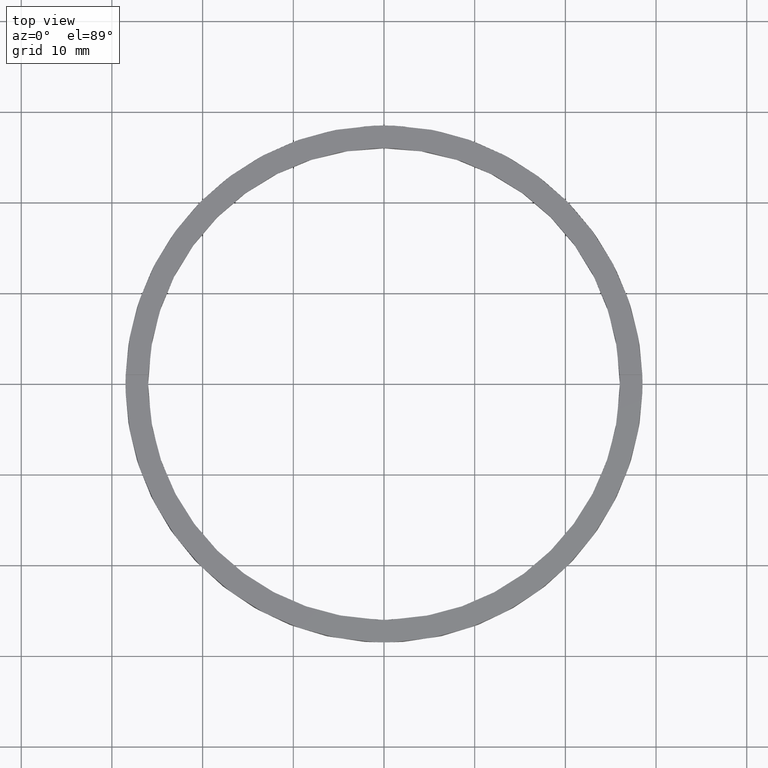
[diagram: clean part render]
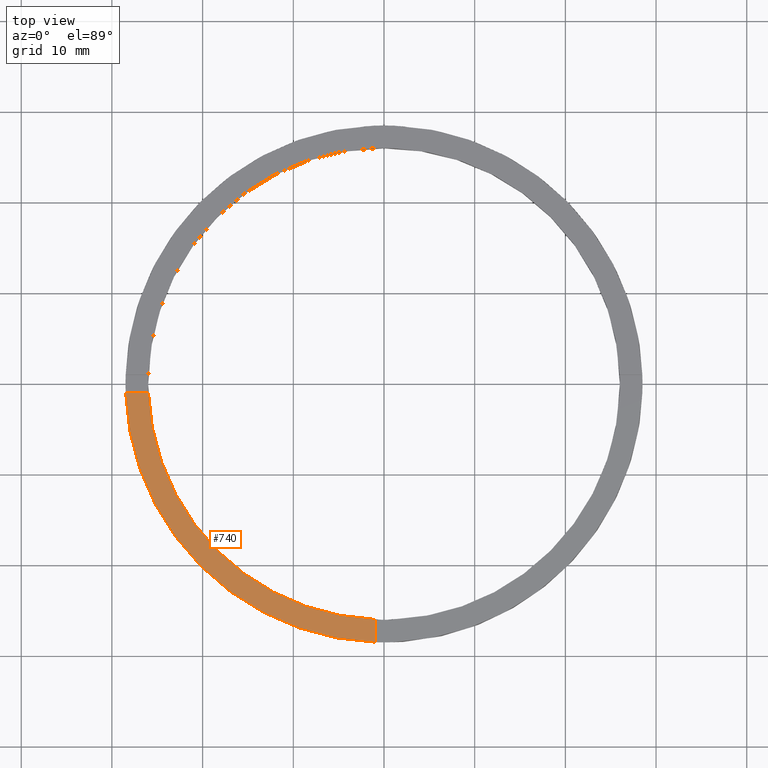
[diagram: same view with one face highlighted and labeled with its STEP entity id]
A machine part, top view. The second image highlights one B-rep face of the part: STEP entity #740.
In plain terms, the highlighted planar face has unit normal (0, 0, 1).
Its self-contained STEP definition (entity closure, byte-faithful):
#3 = CARTESIAN_POINT ( 'NONE',  ( 0.000000000000000000, 0.000000000000000000, 2.500000000000000000 ) ) ;
#16 = CARTESIAN_POINT ( 'NONE',  ( 0.000000000000000000, 0.000000000000000000, 2.500000000000000000 ) ) ;
#32 = CARTESIAN_POINT ( 'NONE',  ( -28.48245073725222909, -1.000000000000027089, 2.500000000000000000 ) ) ;
#45 = DIRECTION ( 'NONE',  ( 1.000000000000000000, 0.000000000000000000, -0.000000000000000000 ) ) ;
#55 = VERTEX_POINT ( 'NONE', #260 ) ;
#79 = EDGE_LOOP ( 'NONE', ( #330, #307, #311, #502 ) ) ;
#173 = DIRECTION ( 'NONE',  ( 0.000000000000000000, 0.000000000000000000, 1.000000000000000000 ) ) ;
#197 = DIRECTION ( 'NONE',  ( 1.000000000000000000, 1.734723475976807341E-16, -0.000000000000000000 ) ) ;
#213 = VECTOR ( 'NONE', #197, 1000.000000000000000 ) ;
#248 = CARTESIAN_POINT ( 'NONE',  ( -1.000000000000159650, -28.48245073725222554, 2.500000000000000000 ) ) ;
#260 = CARTESIAN_POINT ( 'NONE',  ( -25.98076211353316367, -1.000000000000026645, 2.500000000000000000 ) ) ;
#284 = CARTESIAN_POINT ( 'NONE',  ( 0.000000000000000000, 0.000000000000000000, 2.500000000000000000 ) ) ;
#296 = DIRECTION ( 'NONE',  ( 1.000000000000000000, 0.000000000000000000, 0.000000000000000000 ) ) ;
#302 = CARTESIAN_POINT ( 'NONE',  ( -18.50000000000018474, -1.000000000000025313, 2.500000000000000000 ) ) ;
#307 = ORIENTED_EDGE ( 'NONE', *, *, #422, .F. ) ;
#311 = ORIENTED_EDGE ( 'NONE', *, *, #545, .F. ) ;
#315 = VERTEX_POINT ( 'NONE', #248 ) ;
#330 = ORIENTED_EDGE ( 'NONE', *, *, #355, .F. ) ;
#339 = AXIS2_PLACEMENT_3D ( 'NONE', #284, #173, #586 ) ;
#355 = EDGE_CURVE ( 'NONE', #632, #315, #721, .T. ) ;
#407 = FACE_OUTER_BOUND ( 'NONE', #79, .T. ) ;
#422 = EDGE_CURVE ( 'NONE', #55, #632, #727, .T. ) ;
#463 = CIRCLE ( 'NONE', #516, 28.50000000000000000 ) ;
#467 = CARTESIAN_POINT ( 'NONE',  ( -1.000000000000160982, -18.50000000000018474, 2.500000000000000000 ) ) ;
#496 = DIRECTION ( 'NONE',  ( 0.000000000000000000, 0.000000000000000000, 1.000000000000000000 ) ) ;
#502 = ORIENTED_EDGE ( 'NONE', *, *, #534, .T. ) ;
#516 = AXIS2_PLACEMENT_3D ( 'NONE', #16, #685, #296 ) ;
#527 = DIRECTION ( 'NONE',  ( 1.301042606982605567E-16, -1.000000000000000000, 0.000000000000000000 ) ) ;
#529 = PLANE ( 'NONE',  #657 ) ;
#533 = CARTESIAN_POINT ( 'NONE',  ( -1.000000000000159872, -25.98076211353315657, 2.500000000000000000 ) ) ;
#534 = EDGE_CURVE ( 'NONE', #608, #315, #463, .T. ) ;
#545 = EDGE_CURVE ( 'NONE', #608, #55, #747, .T. ) ;
#586 = DIRECTION ( 'NONE',  ( 1.000000000000000000, 0.000000000000000000, 0.000000000000000000 ) ) ;
#608 = VERTEX_POINT ( 'NONE', #32 ) ;
#632 = VERTEX_POINT ( 'NONE', #533 ) ;
#657 = AXIS2_PLACEMENT_3D ( 'NONE', #3, #496, #45 ) ;
#685 = DIRECTION ( 'NONE',  ( 0.000000000000000000, 0.000000000000000000, 1.000000000000000000 ) ) ;
#701 = VECTOR ( 'NONE', #527, 1000.000000000000000 ) ;
#721 = LINE ( 'NONE', #467, #701 ) ;
#727 = CIRCLE ( 'NONE', #339, 26.00000000000000355 ) ;
#740 = ADVANCED_FACE ( 'NONE', ( #407 ), #529, .T. ) ;
#747 = LINE ( 'NONE', #302, #213 ) ;